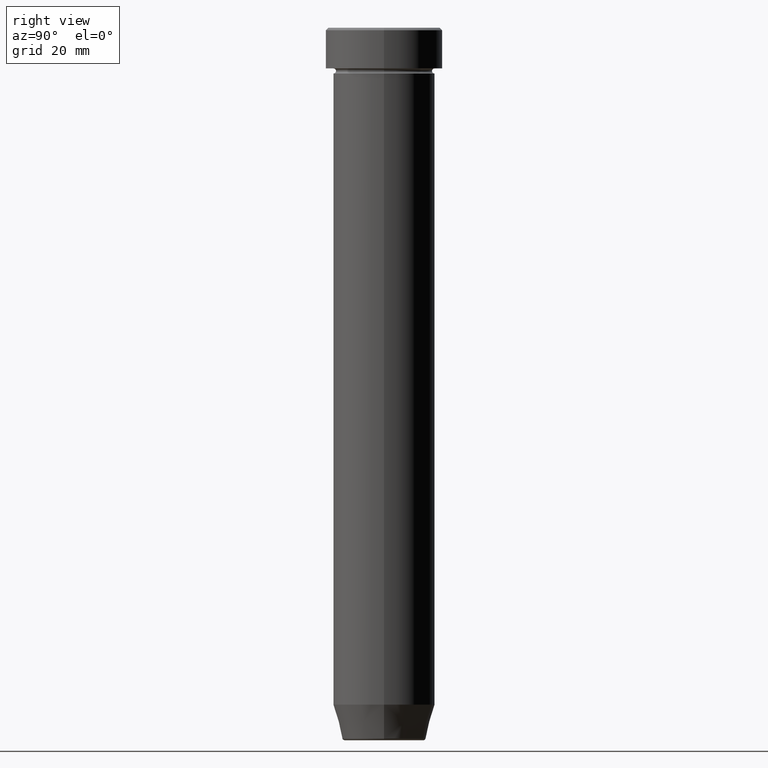
[diagram: clean part render]
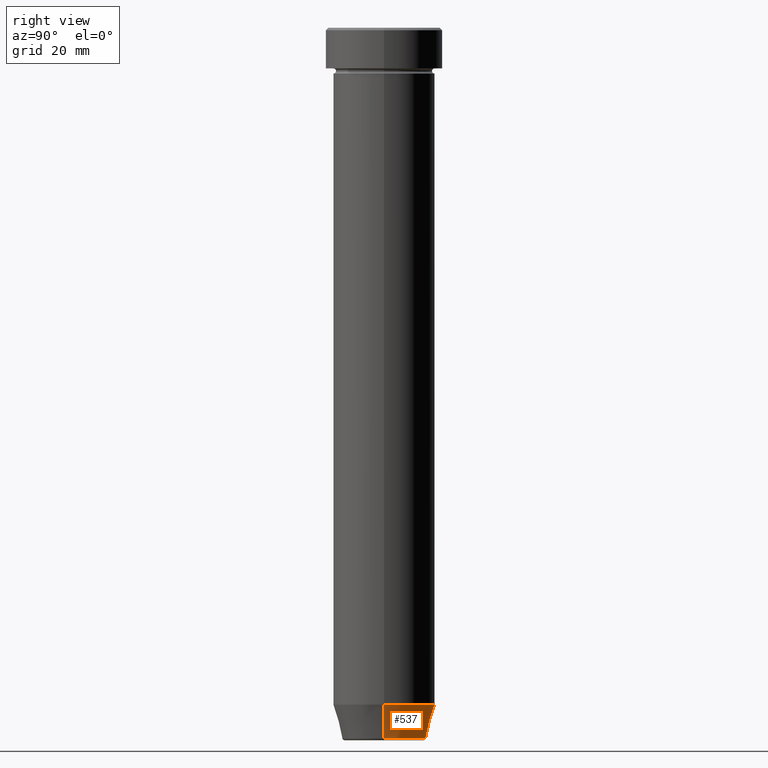
[diagram: same view with one face highlighted and labeled with its STEP entity id]
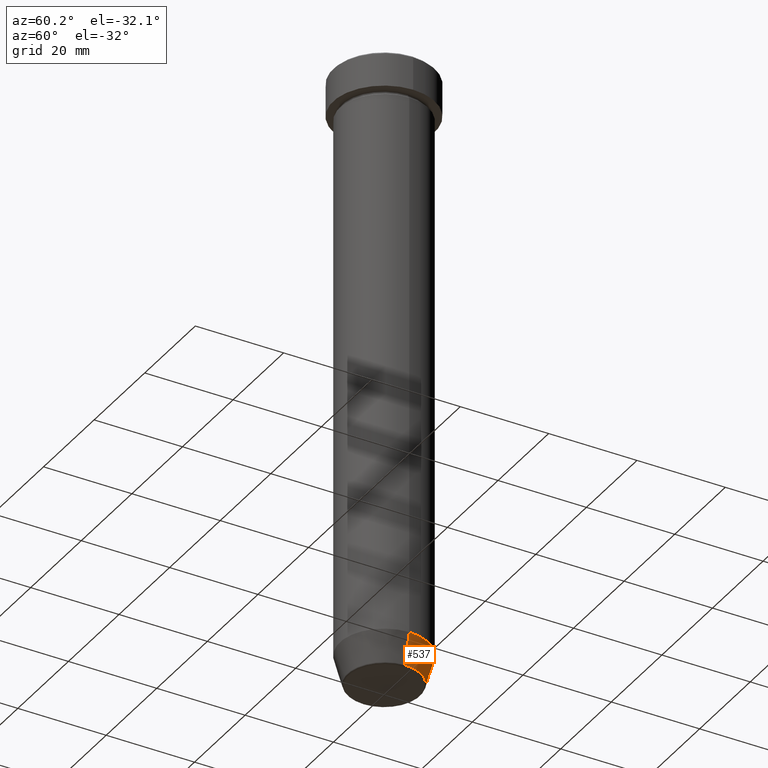
[diagram: same view with one face highlighted and labeled with its STEP entity id]
A machine part, right view. The second image highlights one B-rep face of the part: STEP entity #537.
A second angle (auxiliary view) of the same face is appended — the face is thin or edge-on in the first view.
In plain terms, the highlighted conical surface has half-angle 15 deg.
Its self-contained STEP definition (entity closure, byte-faithful):
#1 = CARTESIAN_POINT ( 'NONE',  ( -8.223655072137175281, 1.115877042642910870E-15, -139.6294095225512706 ) ) ;
#36 = ORIENTED_EDGE ( 'NONE', *, *, #380, .F. ) ;
#50 = DIRECTION ( 'NONE',  ( -0.000000000000000000, -0.000000000000000000, 1.000000000000000000 ) ) ;
#67 = ORIENTED_EDGE ( 'NONE', *, *, #207, .T. ) ;
#71 = CARTESIAN_POINT ( 'NONE',  ( 0.000000000000000000, 0.000000000000000000, -139.9999999999999716 ) ) ;
#75 = CONICAL_SURFACE ( 'NONE', #99, 8.124355652982124809, 0.2617993877991501850 ) ;
#86 = AXIS2_PLACEMENT_3D ( 'NONE', #555, #50, #314 ) ;
#94 = ORIENTED_EDGE ( 'NONE', *, *, #262, .T. ) ;
#97 = CIRCLE ( 'NONE', #284, 9.999999999999998224 ) ;
#99 = AXIS2_PLACEMENT_3D ( 'NONE', #71, #112, #524 ) ;
#100 = CARTESIAN_POINT ( 'NONE',  ( 0.000000000000000000, 0.000000000000000000, -132.9999999999999432 ) ) ;
#112 = DIRECTION ( 'NONE',  ( -0.000000000000000000, -0.000000000000000000, 1.000000000000000000 ) ) ;
#148 = EDGE_LOOP ( 'NONE', ( #94, #67, #529, #36 ) ) ;
#157 = VERTEX_POINT ( 'NONE', #342 ) ;
#179 = CARTESIAN_POINT ( 'NONE',  ( 9.999999999999998224, 0.000000000000000000, -132.9999999999999432 ) ) ;
#199 = CARTESIAN_POINT ( 'NONE',  ( 8.124355652982124809, 0.000000000000000000, -139.9999999999999716 ) ) ;
#201 = FACE_OUTER_BOUND ( 'NONE', #148, .T. ) ;
#206 = VECTOR ( 'NONE', #289, 1000.000000000000000 ) ;
#207 = EDGE_CURVE ( 'NONE', #334, #157, #267, .T. ) ;
#221 = VERTEX_POINT ( 'NONE', #316 ) ;
#239 = CIRCLE ( 'NONE', #86, 8.223655072137175281 ) ;
#261 = VERTEX_POINT ( 'NONE', #179 ) ;
#262 = EDGE_CURVE ( 'NONE', #221, #334, #239, .T. ) ;
#267 = LINE ( 'NONE', #279, #469 ) ;
#279 = CARTESIAN_POINT ( 'NONE',  ( -8.124355652982124809, 9.949466145559264750E-16, -139.9999999999999716 ) ) ;
#281 = DIRECTION ( 'NONE',  ( 1.000000000000000000, 0.000000000000000000, 0.000000000000000000 ) ) ;
#284 = AXIS2_PLACEMENT_3D ( 'NONE', #100, #559, #281 ) ;
#285 = LINE ( 'NONE', #199, #206 ) ;
#289 = DIRECTION ( 'NONE',  ( 0.2588190451025214611, 0.000000000000000000, 0.9659258262890680902 ) ) ;
#314 = DIRECTION ( 'NONE',  ( -1.000000000000000000, 0.000000000000000000, 0.000000000000000000 ) ) ;
#316 = CARTESIAN_POINT ( 'NONE',  ( 8.223655072137175281, 0.000000000000000000, -139.6294095225512706 ) ) ;
#334 = VERTEX_POINT ( 'NONE', #1 ) ;
#342 = CARTESIAN_POINT ( 'NONE',  ( -9.999999999999998224, 1.224646799147353059E-15, -132.9999999999999432 ) ) ;
#358 = EDGE_CURVE ( 'NONE', #261, #157, #97, .T. ) ;
#380 = EDGE_CURVE ( 'NONE', #221, #261, #285, .T. ) ;
#465 = DIRECTION ( 'NONE',  ( -0.2588190451025214611, 3.169619151431773569E-17, 0.9659258262890680902 ) ) ;
#469 = VECTOR ( 'NONE', #465, 1000.000000000000000 ) ;
#524 = DIRECTION ( 'NONE',  ( 1.000000000000000000, 0.000000000000000000, 0.000000000000000000 ) ) ;
#529 = ORIENTED_EDGE ( 'NONE', *, *, #358, .F. ) ;
#537 = ADVANCED_FACE ( 'NONE', ( #201 ), #75, .T. ) ;
#555 = CARTESIAN_POINT ( 'NONE',  ( 0.000000000000000000, 0.000000000000000000, -139.6294095225512706 ) ) ;
#559 = DIRECTION ( 'NONE',  ( -0.000000000000000000, -0.000000000000000000, 1.000000000000000000 ) ) ;